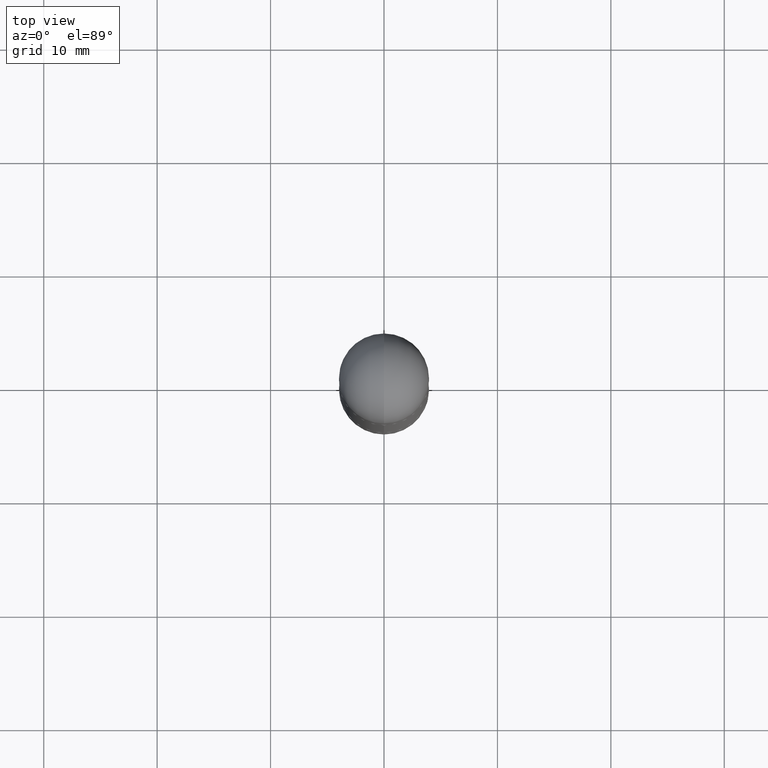
[diagram: clean part render]
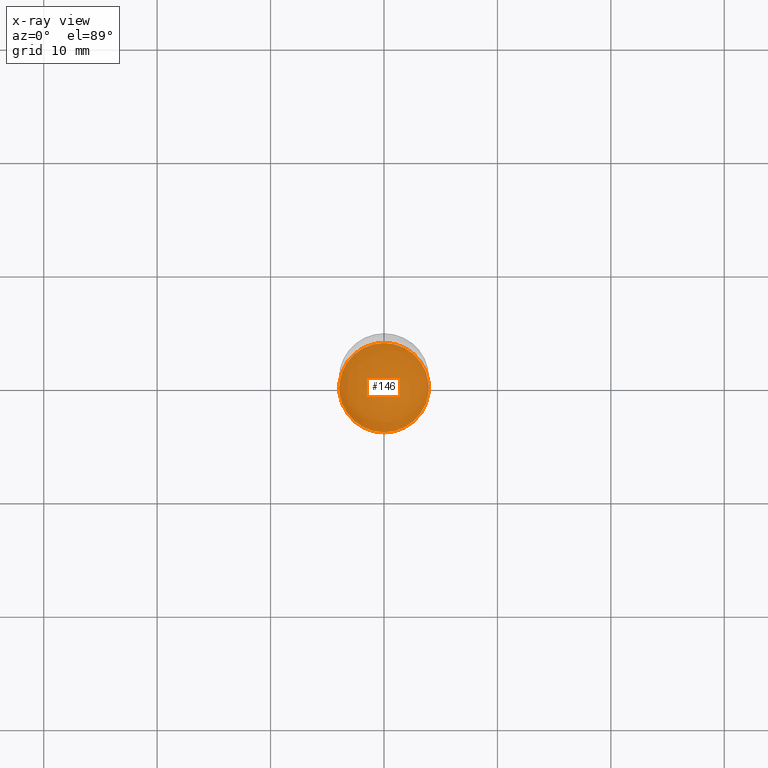
[diagram: x-ray — body ghosted, one internal face saturated and labeled with its STEP entity id]
A machine part, top view, then the same camera in x-ray: the body is ghosted and one INTERNAL B-rep face — a face not visible from any outside direction — is saturated and labeled: STEP entity #146.
In plain terms, the highlighted planar face has unit normal (-0, 0, 1).
Its self-contained STEP definition (entity closure, byte-faithful):
#6 = AXIS2_PLACEMENT_3D ( 'NONE', #73, #405, #706 ) ;
#47 = EDGE_CURVE ( 'NONE', #231, #501, #355, .T. ) ;
#73 = CARTESIAN_POINT ( 'NONE',  ( 4.891809385690356841E-29, -6.981714248673676749E-15, -2.000000000000000444 ) ) ;
#94 = AXIS2_PLACEMENT_3D ( 'NONE', #104, #368, #128 ) ;
#104 = CARTESIAN_POINT ( 'NONE',  ( 4.891809385690356841E-29, -6.981714248673676749E-15, -2.000000000000000444 ) ) ;
#128 = DIRECTION ( 'NONE',  ( -6.982962677686265922E-15, -1.000000000000000000, 3.519288880726909138E-15 ) ) ;
#138 = CARTESIAN_POINT ( 'NONE',  ( 4.891809385690355720E-29, -6.981714248673675961E-15, -2.000000000000000000 ) ) ;
#146 = ADVANCED_FACE ( 'NONE', ( #669 ), #538, .F. ) ;
#231 = VERTEX_POINT ( 'NONE', #346 ) ;
#275 = CARTESIAN_POINT ( 'NONE',  ( 1.106670310946405735E-15, 0.1552499999999930325, -2.000000000000000888 ) ) ;
#346 = CARTESIAN_POINT ( 'NONE',  ( -1.084104955710744053E-15, -0.1552500000000069658, -1.999999999999999778 ) ) ;
#355 = CIRCLE ( 'NONE', #6, 0.1552499999999999991 ) ;
#368 = DIRECTION ( 'NONE',  ( -2.445904692845178140E-29, 3.490857124336838375E-15, 1.000000000000000000 ) ) ;
#373 = ORIENTED_EDGE ( 'NONE', *, *, #47, .F. ) ;
#390 = EDGE_LOOP ( 'NONE', ( #373, #455 ) ) ;
#403 = DIRECTION ( 'NONE',  ( -2.445904692845177860E-29, 3.490857124336837980E-15, 1.000000000000000000 ) ) ;
#405 = DIRECTION ( 'NONE',  ( -2.445904692845178140E-29, 3.490857124336838375E-15, 1.000000000000000000 ) ) ;
#420 = DIRECTION ( 'NONE',  ( -6.982962677686265922E-15, -1.000000000000000000, 3.490857124336837980E-15 ) ) ;
#455 = ORIENTED_EDGE ( 'NONE', *, *, #638, .F. ) ;
#501 = VERTEX_POINT ( 'NONE', #275 ) ;
#538 = PLANE ( 'NONE',  #559 ) ;
#559 = AXIS2_PLACEMENT_3D ( 'NONE', #138, #403, #420 ) ;
#585 = CIRCLE ( 'NONE', #94, 0.1552499999999999991 ) ;
#638 = EDGE_CURVE ( 'NONE', #501, #231, #585, .T. ) ;
#669 = FACE_OUTER_BOUND ( 'NONE', #390, .T. ) ;
#706 = DIRECTION ( 'NONE',  ( -6.982962677686265922E-15, -1.000000000000000000, 3.519288880726909138E-15 ) ) ;